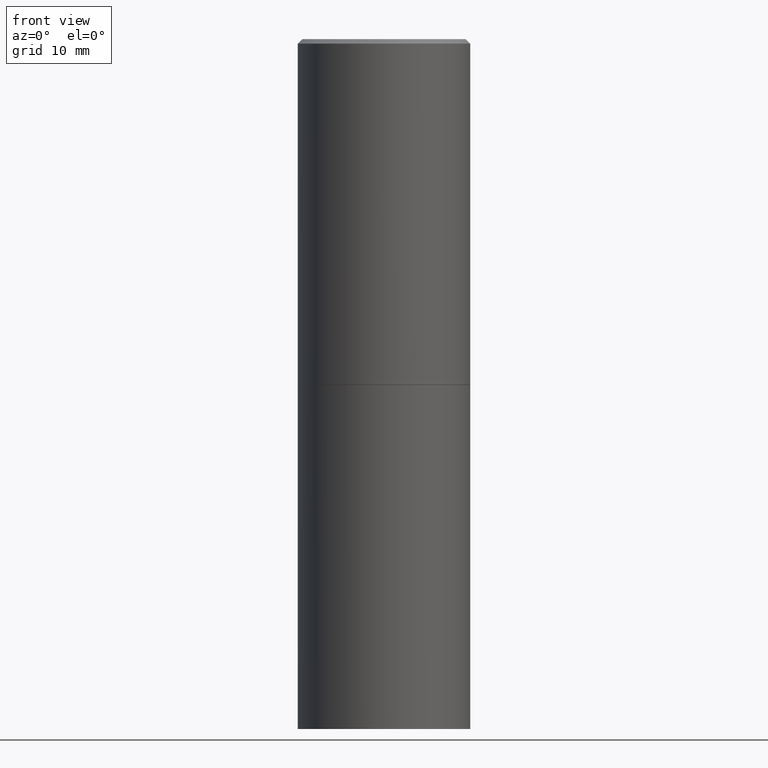
[diagram: clean part render]
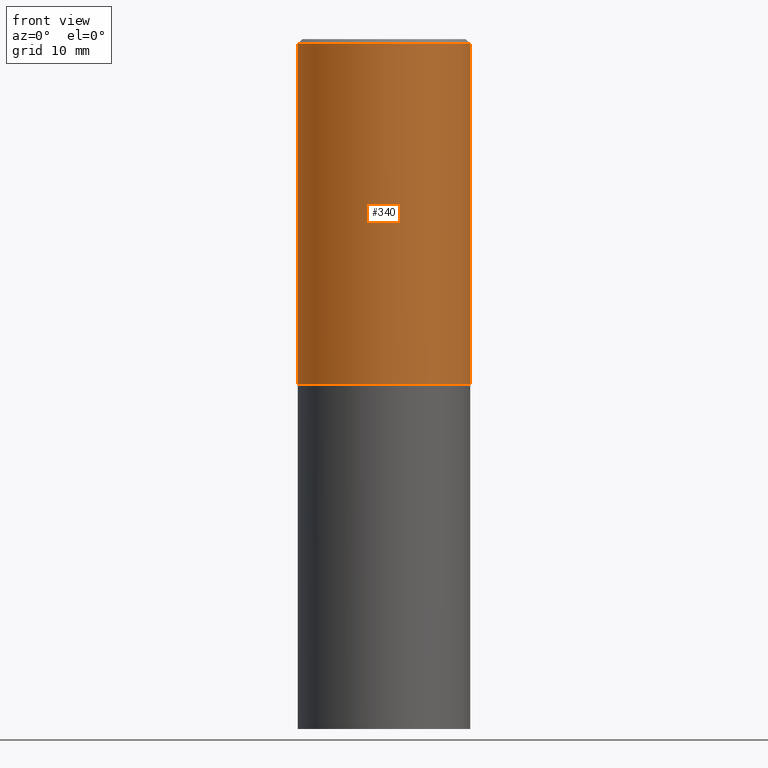
[diagram: same view with one face highlighted and labeled with its STEP entity id]
A machine part, front view. The second image highlights one B-rep face of the part: STEP entity #340.
In plain terms, the highlighted cylindrical surface (partial cylindrical patch) has radius 9.525 mm, axis along (-0, 0, 1).
Its self-contained STEP definition (entity closure, byte-faithful):
#6 = DIRECTION ( 'NONE',  ( 1.000000000000000000, -6.982962677686266711E-15, 4.876176775795935793E-29 ) ) ;
#7 = VECTOR ( 'NONE', #297, 39.37007874015748143 ) ;
#21 = DIRECTION ( 'NONE',  ( -2.445468806185136597E-29, 3.491481338843145583E-15, 1.000000000000000000 ) ) ;
#24 = CIRCLE ( 'NONE', #64, 0.3749999999999998335 ) ;
#26 = ORIENTED_EDGE ( 'NONE', *, *, #350, .T. ) ;
#33 = CYLINDRICAL_SURFACE ( 'NONE', #327, 0.3749999999999999445 ) ;
#47 = EDGE_CURVE ( 'NONE', #369, #176, #366, .T. ) ;
#60 = CARTESIAN_POINT ( 'NONE',  ( -0.3749999999999999445, 2.664535259100375303E-15, -1.844600658845589318E-29 ) ) ;
#64 = AXIS2_PLACEMENT_3D ( 'NONE', #94, #390, #361 ) ;
#81 = ORIENTED_EDGE ( 'NONE', *, *, #182, .F. ) ;
#94 = CARTESIAN_POINT ( 'NONE',  ( 4.890937612370280165E-31, -6.982962677686301470E-17, -0.02000000000000003164 ) ) ;
#98 = LINE ( 'NONE', #246, #289 ) ;
#104 = VERTEX_POINT ( 'NONE', #143 ) ;
#128 = DIRECTION ( 'NONE',  ( -2.445468806185136877E-29, 3.491481338843145188E-15, 1.000000000000000000 ) ) ;
#130 = CARTESIAN_POINT ( 'NONE',  ( 0.000000000000000000, 0.000000000000000000, 0.000000000000000000 ) ) ;
#132 = DIRECTION ( 'NONE',  ( -2.445468806185136597E-29, 3.491481338843145583E-15, 1.000000000000000000 ) ) ;
#143 = CARTESIAN_POINT ( 'NONE',  ( 0.3749999999999998335, -2.642516375941186056E-15, -0.02000000000000003164 ) ) ;
#149 = DIRECTION ( 'NONE',  ( 1.000000000000000000, -6.982962677686264344E-15, 0.000000000000000000 ) ) ;
#161 = CARTESIAN_POINT ( 'NONE',  ( -0.3749999999999998335, 2.548781377355485929E-15, -0.02000000000000003164 ) ) ;
#170 = AXIS2_PLACEMENT_3D ( 'NONE', #291, #21, #149 ) ;
#176 = VERTEX_POINT ( 'NONE', #312 ) ;
#182 = EDGE_CURVE ( 'NONE', #369, #389, #282, .T. ) ;
#188 = EDGE_CURVE ( 'NONE', #389, #104, #24, .T. ) ;
#202 = EDGE_LOOP ( 'NONE', ( #81, #377, #26, #309 ) ) ;
#213 = CARTESIAN_POINT ( 'NONE',  ( -0.3750000000000000555, 5.946793638263273286E-18, -1.502900000000000347 ) ) ;
#215 = FACE_OUTER_BOUND ( 'NONE', #202, .T. ) ;
#246 = CARTESIAN_POINT ( 'NONE',  ( 0.3749999999999999445, -2.618611004132349622E-15, 1.828566290923475642E-29 ) ) ;
#282 = LINE ( 'NONE', #60, #7 ) ;
#289 = VECTOR ( 'NONE', #128, 39.37007874015748143 ) ;
#291 = CARTESIAN_POINT ( 'NONE',  ( 3.675295068815642359E-29, -5.247347304147363686E-15, -1.502900000000000347 ) ) ;
#297 = DIRECTION ( 'NONE',  ( -2.445468806185136877E-29, 3.491481338843145188E-15, 1.000000000000000000 ) ) ;
#309 = ORIENTED_EDGE ( 'NONE', *, *, #188, .F. ) ;
#312 = CARTESIAN_POINT ( 'NONE',  ( 0.3750000000000000555, -7.865958308279712914E-15, -1.502900000000000347 ) ) ;
#327 = AXIS2_PLACEMENT_3D ( 'NONE', #130, #132, #6 ) ;
#340 = ADVANCED_FACE ( 'NONE', ( #215 ), #33, .T. ) ;
#350 = EDGE_CURVE ( 'NONE', #176, #104, #98, .T. ) ;
#361 = DIRECTION ( 'NONE',  ( 1.000000000000000000, -6.982962677686265922E-15, 0.000000000000000000 ) ) ;
#366 = CIRCLE ( 'NONE', #170, 0.3750000000000000555 ) ;
#369 = VERTEX_POINT ( 'NONE', #213 ) ;
#377 = ORIENTED_EDGE ( 'NONE', *, *, #47, .T. ) ;
#389 = VERTEX_POINT ( 'NONE', #161 ) ;
#390 = DIRECTION ( 'NONE',  ( -2.445468806185136597E-29, 3.491481338843145583E-15, 1.000000000000000000 ) ) ;